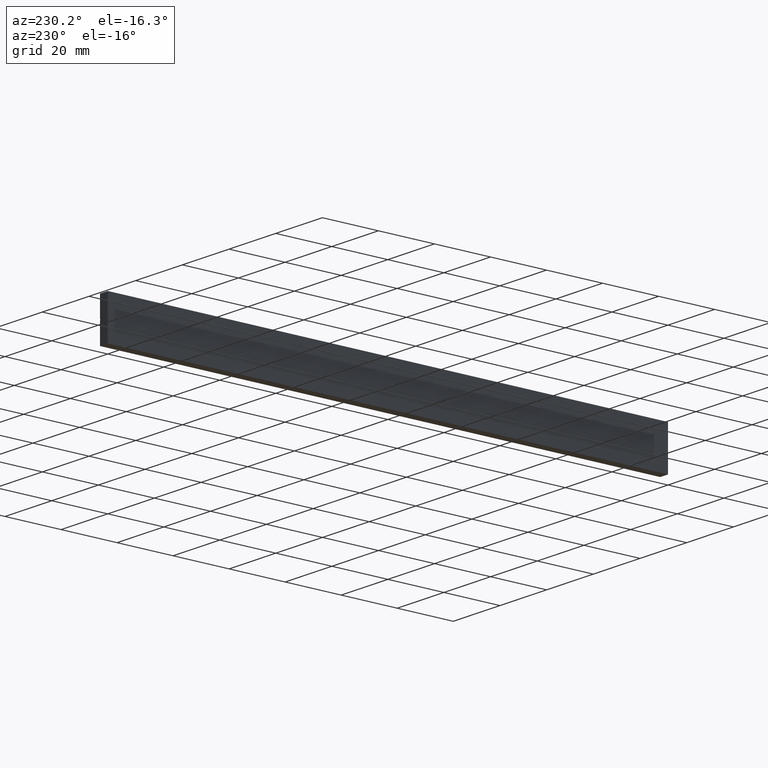
[diagram: clean part render]
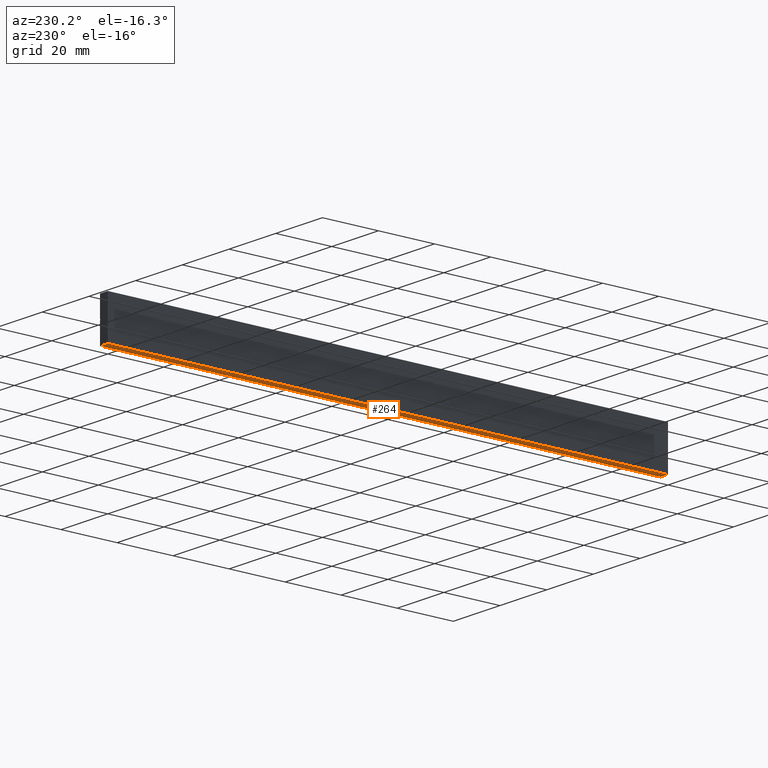
[diagram: same view with one face highlighted and labeled with its STEP entity id]
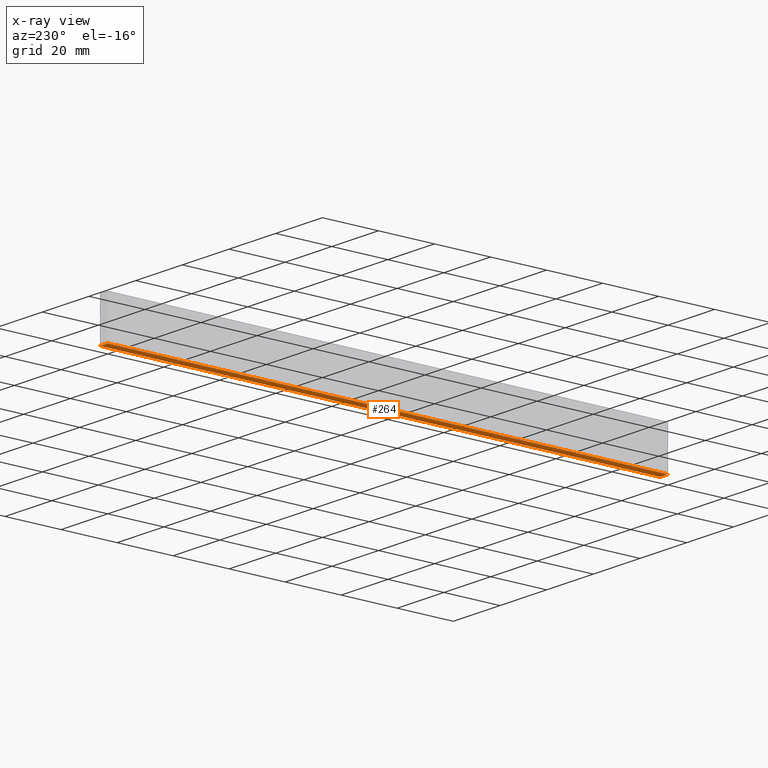
[diagram: x-ray of the same camera — body ghosted, the highlighted face saturated]
A machine part, auxiliary view. The second image highlights one B-rep face of the part: STEP entity #264.
The next image is the same camera in x-ray: the body ghosted, the highlighted face saturated — about 0% of this face is hidden behind the body in this view.
In plain terms, the highlighted face is a freeform B-spline surface patch.
Its self-contained STEP definition (entity closure, byte-faithful):
#49=CARTESIAN_POINT('',(3.300000000000070,0.0,0.0));
#50=VERTEX_POINT('',#49);
#51=CARTESIAN_POINT('',(0.0,0.0,0.0));
#52=VERTEX_POINT('',#51);
#53=CARTESIAN_POINT('',(3.300000000000070,0.0,0.0));
#54=CARTESIAN_POINT('',(0.0,0.0,0.0));
#55=QUASI_UNIFORM_CURVE('',1,(#53,#54),.UNSPECIFIED.,.F.,.U.);
#56=EDGE_CURVE('',#50,#52,#55,.T.);
#107=CARTESIAN_POINT('',(3.300000000000070,200.0,0.0));
#108=VERTEX_POINT('',#107);
#109=CARTESIAN_POINT('',(0.0,200.0,0.0));
#110=VERTEX_POINT('',#109);
#111=CARTESIAN_POINT('',(3.300000000000070,200.0,0.0));
#112=CARTESIAN_POINT('',(0.0,200.0,0.0));
#113=QUASI_UNIFORM_CURVE('',1,(#111,#112),.UNSPECIFIED.,.F.,.U.);
#114=EDGE_CURVE('',#108,#110,#113,.T.);
#166=CARTESIAN_POINT('',(3.300000000000070,200.0,0.0));
#167=CARTESIAN_POINT('',(3.300000000000070,0.0,0.0));
#168=QUASI_UNIFORM_CURVE('',1,(#166,#167),.UNSPECIFIED.,.F.,.U.);
#169=EDGE_CURVE('',#108,#50,#168,.T.);
#245=CARTESIAN_POINT('',(0.0,200.0,0.0));
#246=CARTESIAN_POINT('',(0.0,0.0,0.0));
#247=QUASI_UNIFORM_CURVE('',1,(#245,#246),.UNSPECIFIED.,.F.,.U.);
#248=EDGE_CURVE('',#110,#52,#247,.T.);
#253=CARTESIAN_POINT('',(-0.164834981814045,-9.989999612361171,0.0));
#254=CARTESIAN_POINT('',(3.464834834292620,-9.989999612361171,0.0));
#255=CARTESIAN_POINT('',(-0.164834981814045,209.990004976779200,0.0));
#256=CARTESIAN_POINT('',(3.464834834292620,209.990004976779200,0.0));
#257=B_SPLINE_SURFACE_WITH_KNOTS('',1,1,((#253,#255),(#254,#256)),.UNSPECIFIED.,.F.,.F.,.U.,(2,2),(2,2),(0.0,3.629669816106665),(0.0,219.980004589140410),.UNSPECIFIED.);
#258=ORIENTED_EDGE('',*,*,#56,.T.);
#259=ORIENTED_EDGE('',*,*,#248,.F.);
#260=ORIENTED_EDGE('',*,*,#114,.F.);
#261=ORIENTED_EDGE('',*,*,#169,.T.);
#262=EDGE_LOOP('',(#258,#259,#260,#261));
#263=FACE_OUTER_BOUND('',#262,.T.);
#264=ADVANCED_FACE('',(#263),#257,.F.);